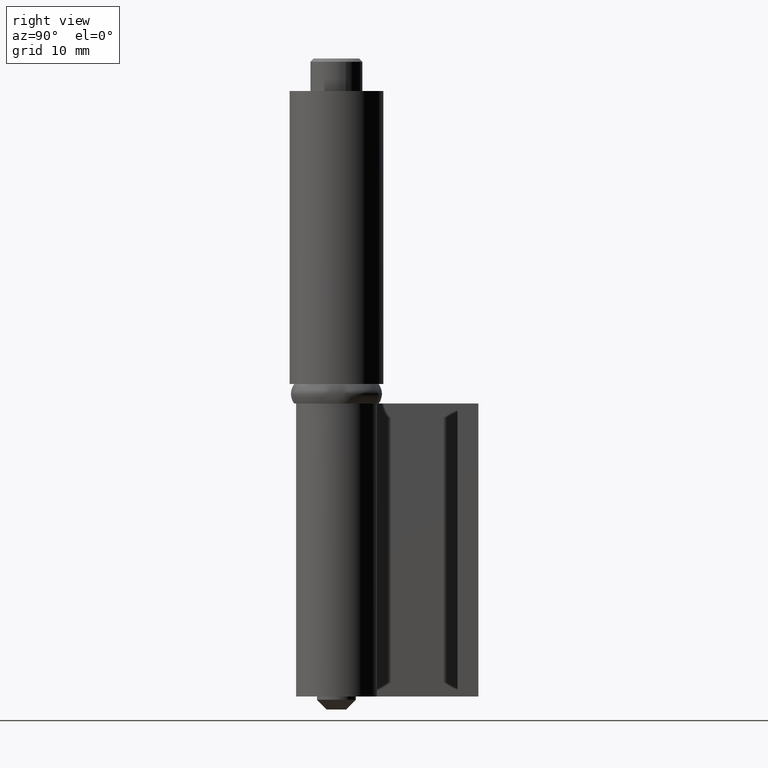
[diagram: clean part render]
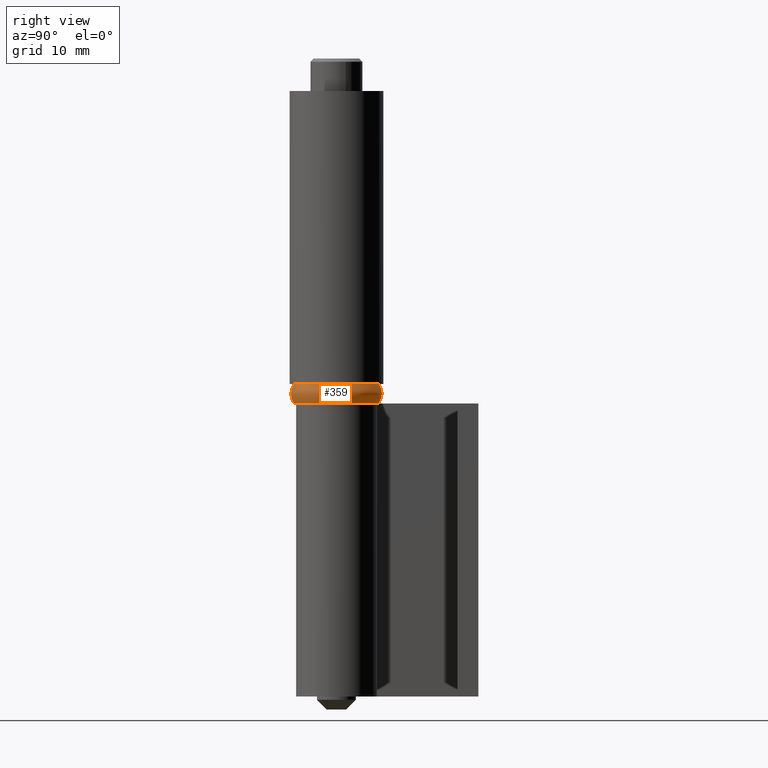
[diagram: same view with one face highlighted and labeled with its STEP entity id]
A machine part, right view. The second image highlights one B-rep face of the part: STEP entity #359.
In plain terms, the highlighted face is a freeform B-spline surface patch.
Its self-contained STEP definition (entity closure, byte-faithful):
#234=CARTESIAN_POINT('',(-0.446818156630669,6.391940703488529,50.115950506521436));
#235=CARTESIAN_POINT('',(-0.263883736388471,6.404728434825318,50.115950506521422));
#236=CARTESIAN_POINT('',(-0.080517387083868,6.407032805627378,50.115950506521436));
#237=CARTESIAN_POINT('',(6.326515418543510,6.487550192711246,50.115950506521429));
#238=CARTESIAN_POINT('',(6.407032805627378,0.080517387083869,50.115950506521436));
#239=CARTESIAN_POINT('',(6.487550192711246,-6.326515418543510,50.115950506521429));
#240=CARTESIAN_POINT('',(0.080517387083863,-6.407032805627378,50.115950506521436));
#241=CARTESIAN_POINT('',(-0.542278357595184,7.757543096885983,48.499999915998515));
#242=CARTESIAN_POINT('',(-0.320261021270680,7.773062855525549,48.499999915998515));
#243=CARTESIAN_POINT('',(-0.097719476654541,7.775859542265525,48.499999915998515));
#244=CARTESIAN_POINT('',(7.678140065610983,7.873579018920066,48.499999915998508));
#245=CARTESIAN_POINT('',(7.775859542265525,0.097719476654542,48.499999915998515));
#246=CARTESIAN_POINT('',(7.873579018920066,-7.678140065610983,48.499999915998508));
#247=CARTESIAN_POINT('',(0.097719476654535,-7.775859542265525,48.499999915998515));
#248=CARTESIAN_POINT('',(-0.446818150852663,6.391940620831473,46.884049395668484));
#249=CARTESIAN_POINT('',(-0.263883732976072,6.404728352002902,46.884049395668470));
#250=CARTESIAN_POINT('',(-0.080517386042662,6.407032722775162,46.884049395668484));
#251=CARTESIAN_POINT('',(6.326515336732498,6.487550108817821,46.884049395668463));
#252=CARTESIAN_POINT('',(6.407032722775162,0.080517386042662,46.884049395668484));
#253=CARTESIAN_POINT('',(6.487550108817821,-6.326515336732498,46.884049395668463));
#254=CARTESIAN_POINT('',(0.080517386042657,-6.407032722775162,46.884049395668484));
#262=(BOUNDED_SURFACE()B_SPLINE_SURFACE(2,2,((#234,#241,#248),(#235,#242,#249),(#236,#243,#250),(#237,#244,#251),(#238,#245,#252),(#239,#246,#253),(#240,#247,#254)),.UNSPECIFIED.,.F.,.F.,.U.)B_SPLINE_SURFACE_WITH_KNOTS((3,2,2,3),(3,3),(0.0,0.463918747430037,12.061898493876370,23.659878240322691),(0.0,3.666333239536407),.UNSPECIFIED.)GEOMETRIC_REPRESENTATION_ITEM()RATIONAL_B_SPLINE_SURFACE(((0.895652699631898,0.683396872534393,0.895652716469566),(0.905528607827709,0.690932343344928,0.905528624851037),(0.916263289759033,0.699123071807572,0.916263306984166),(0.647895985540907,0.494354664959104,0.647895997720915),(0.916263289759033,0.699123071807572,0.916263306984166),(0.647895985540907,0.494354664959104,0.647895997720915),(0.916263289759033,0.699123071807572,0.916263306984166)))REPRESENTATION_ITEM('')SURFACE());
#263=CARTESIAN_POINT('',(-0.453266135344920,6.484176880364494,49.999999999455873));
#264=VERTEX_POINT('',#263);
#265=CARTESIAN_POINT('',(6.500000000000000,0.0,50.0));
#266=VERTEX_POINT('',#265);
#267=CARTESIAN_POINT('',(-0.453266135344920,6.484176880364494,49.999999999455866));
#268=CARTESIAN_POINT('',(-0.226909253261999,6.500000000000002,50.000000000000014));
#269=CARTESIAN_POINT('',(0.0,6.500000000000000,50.0));
#270=CARTESIAN_POINT('',(6.500000000000000,6.500000000000000,49.999999999999993));
#271=CARTESIAN_POINT('',(6.500000000000000,0.0,50.0));
#279=(BOUNDED_CURVE()B_SPLINE_CURVE(2,(#267,#268,#269,#270,#271),.UNSPECIFIED.,.F.,.U.)B_SPLINE_CURVE_WITH_KNOTS((3,2,3),(0.237833686531098,0.250000000000000,0.500000000000000),.UNSPECIFIED.)CURVE()GEOMETRIC_REPRESENTATION_ITEM()RATIONAL_B_SPLINE_CURVE((0.972879876378529,0.985746277147999,1.0,0.707106781186547,1.0))REPRESENTATION_ITEM(''));
#280=EDGE_CURVE('',#264,#266,#279,.T.);
#281=ORIENTED_EDGE('',*,*,#280,.T.);
#282=CARTESIAN_POINT('',(0.081679259325269,-6.499486787696567,49.999999999502819));
#283=VERTEX_POINT('',#282);
#284=CARTESIAN_POINT('',(6.500000000000000,0.0,50.0));
#285=CARTESIAN_POINT('',(6.500000000000001,-6.418827544241883,49.999999999999986));
#286=CARTESIAN_POINT('',(0.081679259325269,-6.499486787696567,49.999999999502819));
#294=(BOUNDED_CURVE()B_SPLINE_CURVE(2,(#284,#285,#286),.UNSPECIFIED.,.F.,.U.)B_SPLINE_CURVE_WITH_KNOTS((3,3),(0.500000000000000,0.747784295917464),.UNSPECIFIED.)CURVE()GEOMETRIC_REPRESENTATION_ITEM()RATIONAL_B_SPLINE_CURVE((1.0,0.709702639989236,0.994854295634197))REPRESENTATION_ITEM(''));
#295=EDGE_CURVE('',#266,#283,#294,.T.);
#296=ORIENTED_EDGE('',*,*,#295,.T.);
#297=CARTESIAN_POINT('',(0.081679259286092,-6.499486787410909,47.000000000115797));
#298=VERTEX_POINT('',#297);
#299=CARTESIAN_POINT('',(0.081679259325269,-6.499486787696567,49.999999999502819));
#300=CARTESIAN_POINT('',(0.095816054101536,-7.624397961335611,48.499999999404110));
#301=CARTESIAN_POINT('',(0.081679259286092,-6.499486787410909,47.000000000115797));
#309=(BOUNDED_CURVE()B_SPLINE_CURVE(2,(#299,#300,#301),.UNSPECIFIED.,.F.,.U.)B_SPLINE_CURVE_WITH_KNOTS((3,3),(-1.683131979925314,-0.316868019640475),.UNSPECIFIED.)CURVE()GEOMETRIC_REPRESENTATION_ITEM()RATIONAL_B_SPLINE_CURVE((0.897436872173033,0.717949497949095,0.897436872287119))REPRESENTATION_ITEM(''));
#310=EDGE_CURVE('',#283,#298,#309,.T.);
#311=ORIENTED_EDGE('',*,*,#310,.T.);
#312=CARTESIAN_POINT('',(6.499999999999799,0.0,47.0));
#313=VERTEX_POINT('',#312);
#314=CARTESIAN_POINT('',(6.499999999999799,0.0,47.0));
#315=CARTESIAN_POINT('',(6.499999999999798,-6.418827544311953,47.000000000000014));
#316=CARTESIAN_POINT('',(0.081679259286092,-6.499486787410910,47.000000000115811));
#324=(BOUNDED_CURVE()B_SPLINE_CURVE(2,(#314,#315,#316),.UNSPECIFIED.,.F.,.U.)B_SPLINE_CURVE_WITH_KNOTS((3,3),(0.500000000000000,0.747784295919389),.UNSPECIFIED.)CURVE()GEOMETRIC_REPRESENTATION_ITEM()RATIONAL_B_SPLINE_CURVE((1.0,0.709702639986981,0.994854295638628))REPRESENTATION_ITEM(''));
#325=EDGE_CURVE('',#313,#298,#324,.T.);
#326=ORIENTED_EDGE('',*,*,#325,.F.);
#327=CARTESIAN_POINT('',(-0.453266135293463,6.484176880063005,47.000000000138471));
#328=VERTEX_POINT('',#327);
#329=CARTESIAN_POINT('',(-0.453266135293463,6.484176880063005,47.000000000138463));
#330=CARTESIAN_POINT('',(-0.226909253231647,6.499999999999799,47.0));
#331=CARTESIAN_POINT('',(0.0,6.499999999999799,47.0));
#332=CARTESIAN_POINT('',(6.499999999999801,6.499999999999801,47.000000000000007));
#333=CARTESIAN_POINT('',(6.499999999999799,0.0,47.0));
#341=(BOUNDED_CURVE()B_SPLINE_CURVE(2,(#329,#330,#331,#332,#333),.UNSPECIFIED.,.F.,.U.)B_SPLINE_CURVE_WITH_KNOTS((3,2,3),(0.237833686532702,0.250000000000000,0.500000000000000),.UNSPECIFIED.)CURVE()GEOMETRIC_REPRESENTATION_ITEM()RATIONAL_B_SPLINE_CURVE((0.972879876381921,0.985746277149878,1.0,0.707106781186548,1.0))REPRESENTATION_ITEM(''));
#342=EDGE_CURVE('',#328,#313,#341,.T.);
#343=ORIENTED_EDGE('',*,*,#342,.F.);
#344=CARTESIAN_POINT('',(-0.453266135344920,6.484176880364494,49.999999999455859));
#345=CARTESIAN_POINT('',(-0.531716043206953,7.606438262235116,48.499999999366167));
#346=CARTESIAN_POINT('',(-0.453266135293463,6.484176880063005,47.000000000138463));
#354=(BOUNDED_CURVE()B_SPLINE_CURVE(2,(#344,#345,#346),.UNSPECIFIED.,.F.,.U.)B_SPLINE_CURVE_WITH_KNOTS((3,3),(-1.683131979871856,-0.316868019666281),.UNSPECIFIED.)CURVE()GEOMETRIC_REPRESENTATION_ITEM()RATIONAL_B_SPLINE_CURVE((0.877249748382845,0.701799798933369,0.877249748501466))REPRESENTATION_ITEM(''));
#355=EDGE_CURVE('',#264,#328,#354,.T.);
#356=ORIENTED_EDGE('',*,*,#355,.F.);
#357=EDGE_LOOP('',(#281,#296,#311,#326,#343,#356));
#358=FACE_OUTER_BOUND('',#357,.T.);
#359=ADVANCED_FACE('',(#358),#262,.T.);